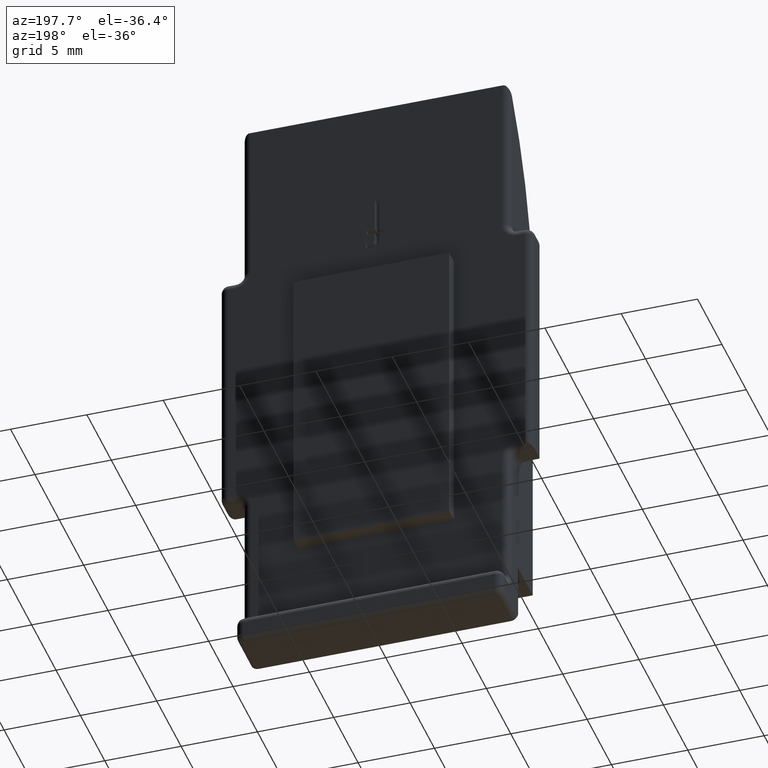
[diagram: clean part render]
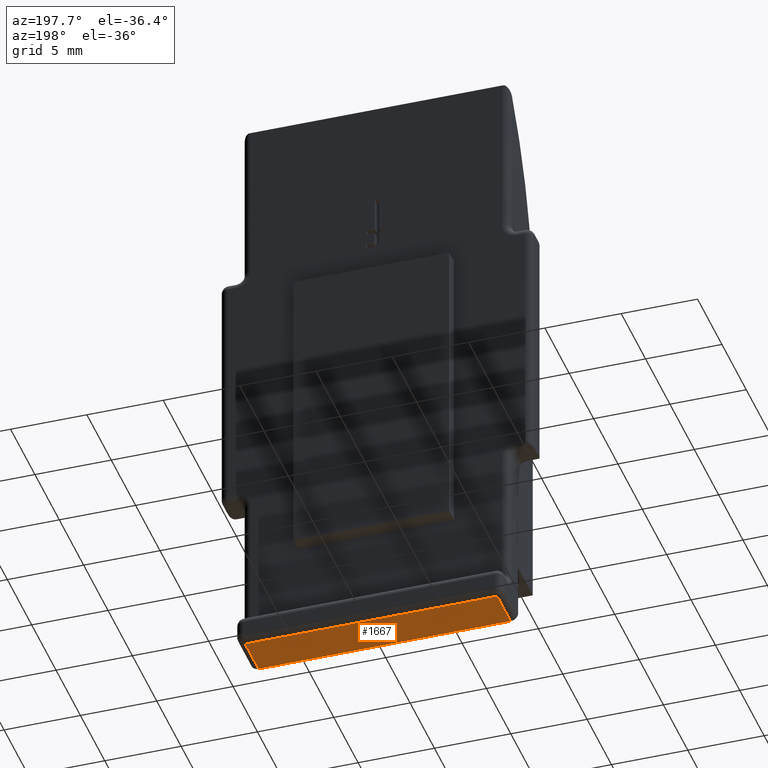
[diagram: same view with one face highlighted and labeled with its STEP entity id]
A machine part, auxiliary view. The second image highlights one B-rep face of the part: STEP entity #1667.
In plain terms, the highlighted planar face has unit normal (0, 0, -1).
Its self-contained STEP definition (entity closure, byte-faithful):
#3 = VECTOR ( 'NONE', #2113, 1000.000000000000000 ) ;
#53 = EDGE_CURVE ( 'NONE', #2940, #3005, #2275, .T. ) ;
#127 = DIRECTION ( 'NONE',  ( -1.000000000000000000, -0.0000000000000000000, -0.0000000000000000000 ) ) ;
#150 = CARTESIAN_POINT ( 'NONE',  ( 17.50000000000000000, 2.999999999999988900, -4.000000000000021300 ) ) ;
#537 = CARTESIAN_POINT ( 'NONE',  ( 0.5000000000000000000, 5.749999999999992000, -4.000000000000017800 ) ) ;
#661 = ORIENTED_EDGE ( 'NONE', *, *, #1768, .T. ) ;
#696 = ORIENTED_EDGE ( 'NONE', *, *, #53, .T. ) ;
#700 = CARTESIAN_POINT ( 'NONE',  ( 17.50000000000000000, 5.749999999999992000, -4.000000000000017800 ) ) ;
#752 = DIRECTION ( 'NONE',  ( 1.000000000000000000, -0.0000000000000000000, -0.0000000000000000000 ) ) ;
#858 = ORIENTED_EDGE ( 'NONE', *, *, #2141, .T. ) ;
#898 = ORIENTED_EDGE ( 'NONE', *, *, #1506, .T. ) ;
#906 = DIRECTION ( 'NONE',  ( 0.0000000000000000000, 1.000000000000000000, 5.337610695313245500E-016 ) ) ;
#907 = LINE ( 'NONE', #150, #1078 ) ;
#908 = DIRECTION ( 'NONE',  ( 0.0000000000000000000, 5.337610695313245500E-016, -1.000000000000000000 ) ) ;
#918 = PLANE ( 'NONE',  #964 ) ;
#953 = CARTESIAN_POINT ( 'NONE',  ( 17.50000000000000000, 2.168404344971008900E-015, -4.000000000000021300 ) ) ;
#964 = AXIS2_PLACEMENT_3D ( 'NONE', #953, #908, #906 ) ;
#1078 = VECTOR ( 'NONE', #127, 1000.000000000000000 ) ;
#1252 = DIRECTION ( 'NONE',  ( -0.0000000000000000000, 1.000000000000000000, 5.337610695313245500E-016 ) ) ;
#1296 = CARTESIAN_POINT ( 'NONE',  ( 0.5000000000000000000, 6.249999999999992900, -4.000000000000017800 ) ) ;
#1506 = EDGE_CURVE ( 'NONE', #2757, #1901, #2149, .T. ) ;
#1584 = CARTESIAN_POINT ( 'NONE',  ( 17.00000000000000000, 2.999999999999988900, -4.000000000000021300 ) ) ;
#1630 = EDGE_LOOP ( 'NONE', ( #661, #696, #858, #898 ) ) ;
#1651 = LINE ( 'NONE', #700, #1686 ) ;
#1667 = ADVANCED_FACE ( 'NONE', ( #1873 ), #918, .T. ) ;
#1686 = VECTOR ( 'NONE', #752, 1000.000000000000000 ) ;
#1768 = EDGE_CURVE ( 'NONE', #1901, #2940, #1651, .T. ) ;
#1873 = FACE_OUTER_BOUND ( 'NONE', #1630, .T. ) ;
#1901 = VERTEX_POINT ( 'NONE', #537 ) ;
#2003 = CARTESIAN_POINT ( 'NONE',  ( 0.5000000000000004400, 2.999999999999988900, -4.000000000000021300 ) ) ;
#2067 = VECTOR ( 'NONE', #1252, 1000.000000000000000 ) ;
#2113 = DIRECTION ( 'NONE',  ( 0.0000000000000000000, -1.000000000000000000, -5.337610695313245500E-016 ) ) ;
#2141 = EDGE_CURVE ( 'NONE', #3005, #2757, #907, .T. ) ;
#2149 = LINE ( 'NONE', #1296, #2067 ) ;
#2206 = CARTESIAN_POINT ( 'NONE',  ( 17.00000000000000000, 2.168404344971008900E-015, -4.000000000000021300 ) ) ;
#2254 = CARTESIAN_POINT ( 'NONE',  ( 17.00000000000000000, 5.749999999999992000, -4.000000000000017800 ) ) ;
#2275 = LINE ( 'NONE', #2206, #3 ) ;
#2757 = VERTEX_POINT ( 'NONE', #2003 ) ;
#2940 = VERTEX_POINT ( 'NONE', #2254 ) ;
#3005 = VERTEX_POINT ( 'NONE', #1584 ) ;